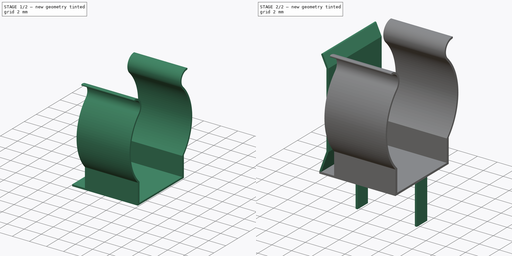
[diagram: build sequence overview — one tinted view per stage of 2, left to right]
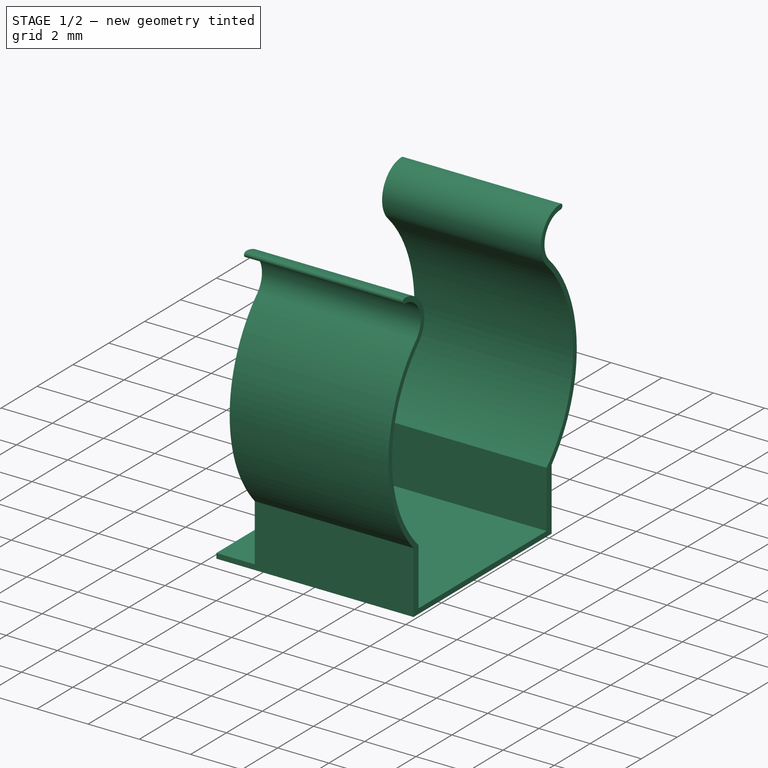
[diagram: stage 1 of 2 — iso view after this stage's code; geometry added in this stage tinted green]
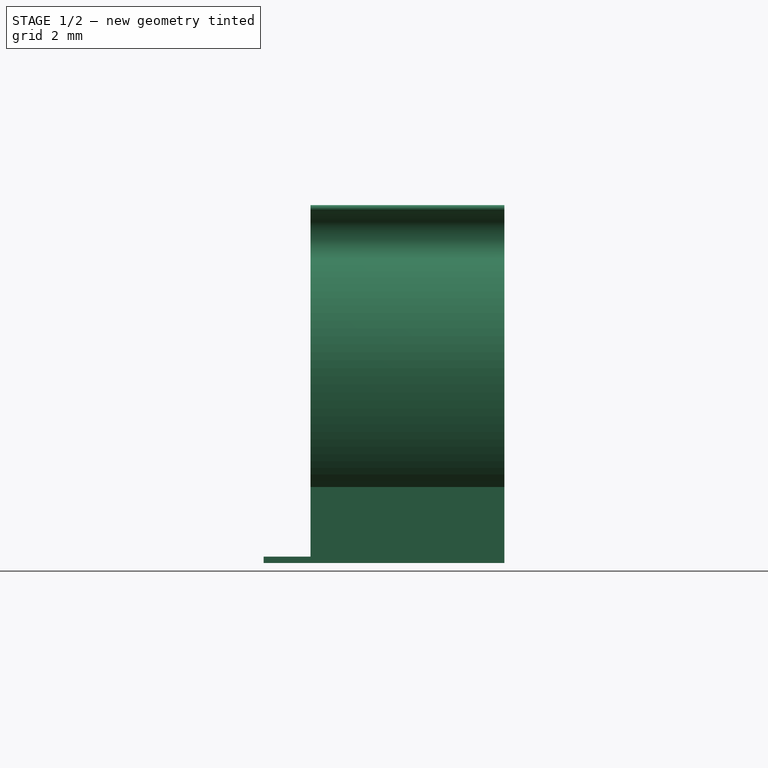
[diagram: stage 1 of 2 — front view after this stage's code; geometry added in this stage tinted green]
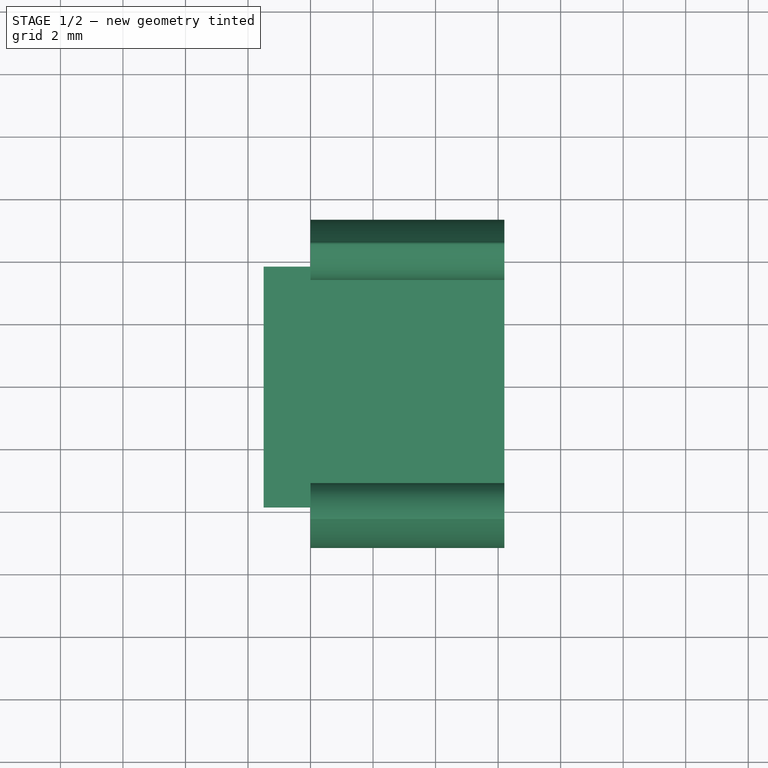
[diagram: stage 1 of 2 — top view after this stage's code; geometry added in this stage tinted green]
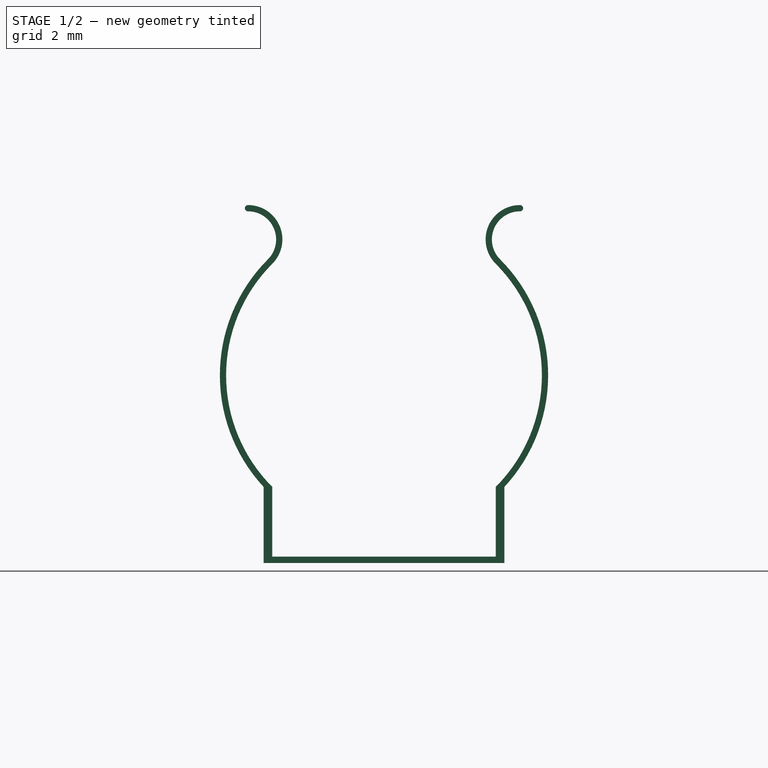
[diagram: stage 1 of 2 — right view after this stage's code; geometry added in this stage tinted green]
FCSTD DOCUMENT  (FreeCAD 1.0R39109 (Git))
Label: BC-0401
License: All rights reserved
LicenseURL: http://en.wikipedia.org/wiki/All_rights_reserved
objects: Sketcher::SketchObject×4, PartDesign::Pad×4, PartDesign::Body×1
note: 21 computed .brp shape members not serialized (recipe doc carries the construction recipe); baked Part::Feature solids carry a one-line shape summary decoded from their .brp

FEATURE [Sketcher::SketchObject] Sketch
  ArcFitTolerance = 1e-06
  AttachmentSupport = -> [YZ_Plane]
  FullyConstrained = true
  MakeInternals = false
  MapMode = 5
  Placement = pos=(0,0,0) rot=(0.57735,0.57735,0.57735;2.0944rad)
  sketch-geometry (16):
    g0: ArcOfCircle CenterX=0 CenterY=6 CenterZ=0 NormalX=0 NormalY=0 NormalZ=1 AngleXU=0 Radius=5.05 StartAngle=2.35664 EndAngle=3.92655
    g1: ArcOfCircle CenterX=0 CenterY=6 CenterZ=0 NormalX=0 NormalY=0 NormalZ=1 AngleXU=0 Radius=5.25 StartAngle=5.5356 EndAngle=7.06814
    g2: ArcOfCircle CenterX=0 CenterY=6 CenterZ=0 NormalX=0 NormalY=0 NormalZ=1 AngleXU=0 Radius=5.25 StartAngle=2.35664 EndAngle=3.88918
    g3: ArcOfCircle CenterX=0 CenterY=6 CenterZ=0 NormalX=0 NormalY=0 NormalZ=1 AngleXU=0 Radius=5.05 StartAngle=5.49823 EndAngle=7.06814
    g4: ArcOfCircle CenterX=4.35062 CenterY=10.3468 CenterZ=0 NormalX=0 NormalY=0 NormalZ=1 AngleXU=0 Radius=0.9 StartAngle=1.5708 EndAngle=3.92655
    g5: ArcOfCircle CenterX=4.35062 CenterY=10.3468 CenterZ=0 NormalX=0 NormalY=0 NormalZ=1 AngleXU=0 Radius=1.1 StartAngle=1.5708 EndAngle=3.92655
    g6: ArcOfCircle CenterX=-4.35062 CenterY=10.3468 CenterZ=0 NormalX=0 NormalY=0 NormalZ=1 AngleXU=0 Radius=0.9 StartAngle=5.49823 EndAngle=7.85398
    g7: ArcOfCircle CenterX=-4.35062 CenterY=10.3468 CenterZ=0 NormalX=0 NormalY=0 NormalZ=1 AngleXU=0 Radius=1.1 StartAngle=5.49823 EndAngle=7.85398
    g8: ArcOfCircle CenterX=-4.35063 CenterY=11.3468 CenterZ=0 NormalX=0 NormalY=0 NormalZ=1 AngleXU=0 Radius=0.1 StartAngle=1.5708 EndAngle=4.71239
    g9: ArcOfCircle CenterX=4.35062 CenterY=11.3468 CenterZ=0 NormalX=0 NormalY=0 NormalZ=1 AngleXU=0 Radius=0.1 StartAngle=4.71239 EndAngle=7.85398
    g10: LineSegment StartX=-3.85 StartY=0 StartZ=0 EndX=3.85 EndY=0 EndZ=0
    g11: LineSegment StartX=-3.85 StartY=2.43069 StartZ=0 EndX=-3.85 EndY=0 EndZ=0
    g12: LineSegment StartX=3.85 StartY=2.43069 StartZ=0 EndX=3.85 EndY=0 EndZ=0
    g13: LineSegment StartX=3.57246 StartY=2.43069 StartZ=0 EndX=3.57246 EndY=0.2 EndZ=0
    g14: LineSegment StartX=3.57246 StartY=0.2 StartZ=0 EndX=-3.57246 EndY=0.2 EndZ=0
    g15: LineSegment StartX=-3.57246 StartY=0.2 StartZ=0 EndX=-3.57246 EndY=2.43069 EndZ=0
  constraints (45):
    c: PointOnObject(g0,g-2)
    c: Coincident(g1,g0)
    c: Coincident(g2,g0)
    c: Coincident(g3,g0)
    c: DistanceY(g-1,g0) = 6
    c: Horizontal(g3,g0)
    c: Horizontal(g2,g1)
    c: Horizontal(g1,g2)
    c: Horizontal(g0,g3)
    c: Equal(g3,g0)
    c: Equal(g2,g1)
    c: Diameter(g3) = 10.1
    c: Equal(g7,g5)
    c: Equal(g4,g6)
    c: Tangent(g6,g2) = 1.5708
    c: Tangent(g7,g0) = 1.5708
    c: Tangent(g5,g3) = 1.5708
    c: Tangent(g4,g1) = 1.5708
    c: Coincident(g4,g5)
    c: Tangent(g8,g7) = -1.5708
    c: Tangent(g8,g6) = 1.5708
    c: Tangent(g9,g5) = -1.5708
    c: Tangent(g9,g4) = 1.5708
    c: Horizontal(g9,g8)
    c: Diameter(g8) = 0.2
    c: PointOnObject(g10,g-1)
    c: DistanceX(g10,g10) = 7.7
    c: Symmetric(g10,g10,g-1)
    c: Coincident(g11,g2)
    c: Coincident(g11,g10)
    c: Coincident(g12,g1)
    c: Coincident(g12,g10)
    c: Vertical(g12)
    c: Coincident(g13,g3)
    c: Vertical(g13)
    c: Coincident(g14,g13)
    c: Horizontal(g14)
    c: Coincident(g15,g14)
    c: Coincident(g15,g0)
    c: Vertical(g15)
    c: Horizontal(g0,g2)
    c: DistanceY(g10,g13) = 0.2
    c: Vertical(g0,g0)
    c: Diameter(g4) = 1.8
    c: Vertical(g4,g5)
FEATURE [PartDesign::Pad] Pad
  Direction = (1,0,0)
  Length = 6.2
  Length2 = 10
  Placement = pos=(0,0,0) rot=(1,1,1;2.0944rad)
  Profile = -> Sketch
  ReferenceAxis = -> Sketch [N_Axis]
  Suppressed = false
  Type = 0
FEATURE [Sketcher::SketchObject] Sketch001
  ArcFitTolerance = 1e-06
  AttachmentSupport = -> [YZ_Plane]
  FullyConstrained = true
  MakeInternals = false
  MapMode = 5
  Placement = pos=(0,0,0) rot=(0.57735,0.57735,0.57735;2.0944rad)
  sketch-geometry (4):
    g0: LineSegment StartX=3.85 StartY=0.2 StartZ=0 EndX=-3.85 EndY=0.2 EndZ=0
    g1: LineSegment StartX=-3.85 StartY=0.2 StartZ=0 EndX=-3.85 EndY=0 EndZ=0
    g2: LineSegment StartX=-3.85 StartY=0 StartZ=0 EndX=3.85 EndY=0 EndZ=0
    g3: LineSegment StartX=3.85 StartY=0 StartZ=0 EndX=3.85 EndY=0.2 EndZ=0
  constraints (11):
    c: Coincident(g0,g1)
    c: Coincident(g1,g2)
    c: Coincident(g2,g3)
    c: Coincident(g3,g0)
    c: Horizontal(g0)
    c: Vertical(g1)
    c: Vertical(g3)
    c: DistanceX(g2,g2) = 7.7
    c: Symmetric(g1,g2,g-2)
    c: PointOnObject(g1,g-1)
    c: DistanceY(g1,g1) = 0.2
FEATURE [PartDesign::Pad] Pad001
  BaseFeature = -> Pad
  Direction = (1,0,0)
  Length = 1.5
  Length2 = 10
  Placement = pos=(0,0,0) rot=(1,1,1;2.0944rad)
  Profile = -> Sketch001
  ReferenceAxis = -> Sketch001 [N_Axis]
  Reversed = true
  Suppressed = false
  Type = 0
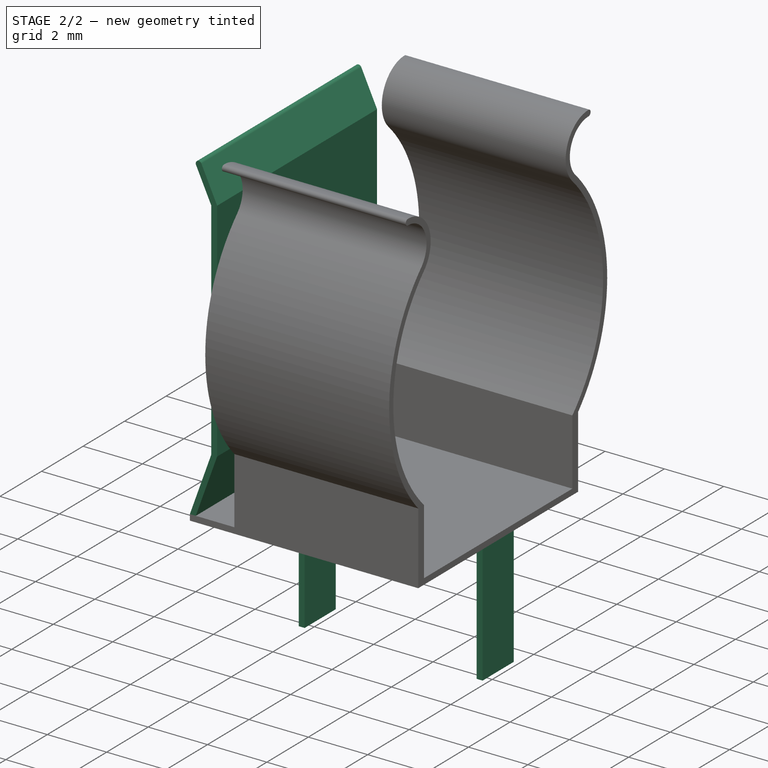
[diagram: stage 2 of 2 — iso view after this stage's code; geometry added in this stage tinted green]
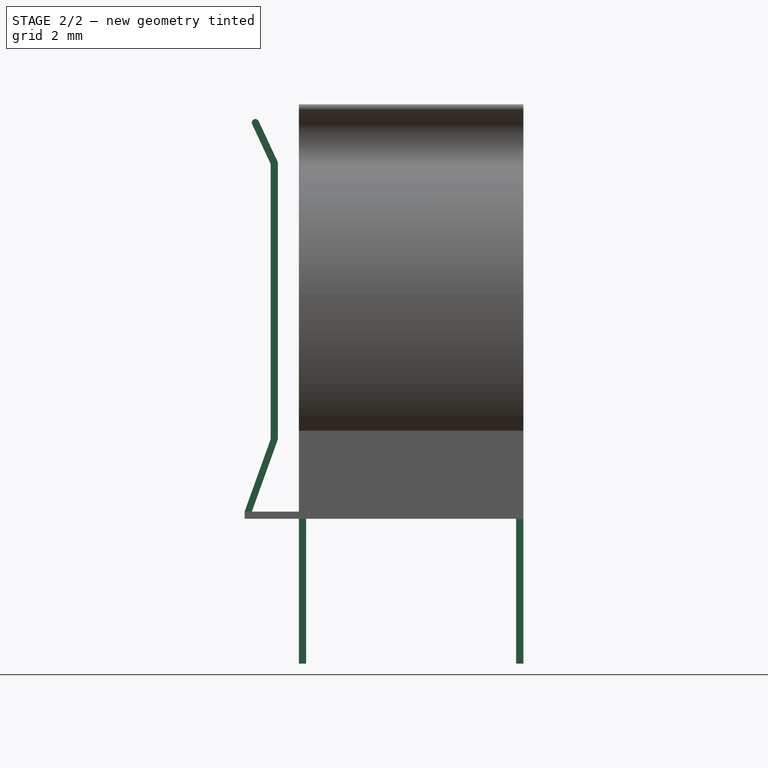
[diagram: stage 2 of 2 — front view after this stage's code; geometry added in this stage tinted green]
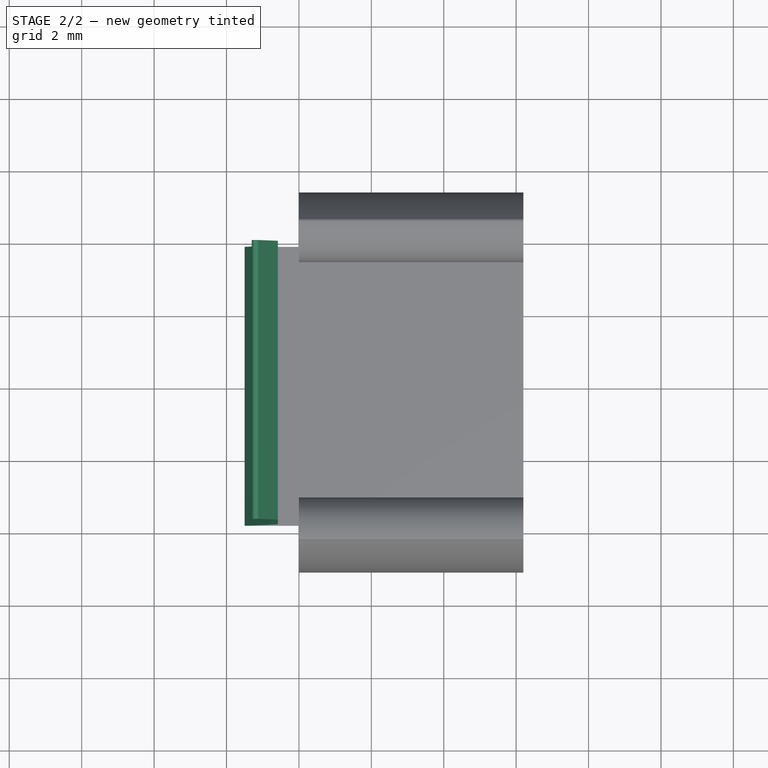
[diagram: stage 2 of 2 — top view after this stage's code; geometry added in this stage tinted green]
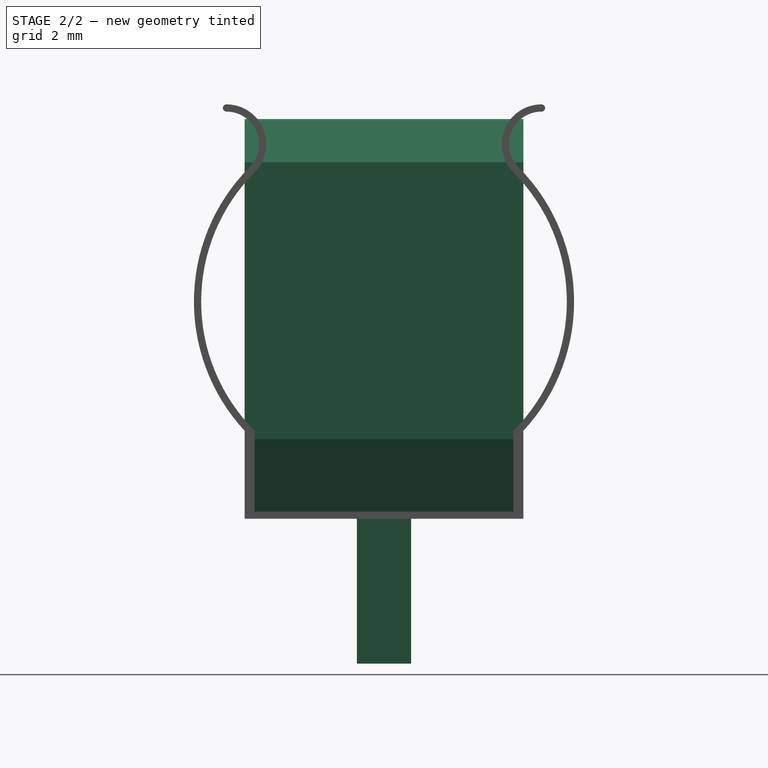
[diagram: stage 2 of 2 — right view after this stage's code; geometry added in this stage tinted green]
FEATURE [Sketcher::SketchObject] Sketch002
  ArcFitTolerance = 1e-06
  AttachmentSupport = -> [XZ_Plane]
  FullyConstrained = true
  MakeInternals = false
  MapMode = 5
  Placement = pos=(0,0,0) rot=(1,0,0;1.5708rad)
  sketch-geometry (13):
    g0: LineSegment StartX=-1.5 StartY=0.2 StartZ=0 EndX=-0.78 EndY=2.2 EndZ=0
    g1: LineSegment StartX=-0.78 StartY=2.2 StartZ=0 EndX=-0.78 EndY=9.8 EndZ=0
    g2: LineSegment StartX=-0.78 StartY=9.8 StartZ=0 EndX=-1.29294 EndY=10.9 EndZ=0
    g3: LineSegment StartX=-1.5 StartY=0.2 StartZ=0 EndX=-1.5 EndY=0 EndZ=0
    g4: LineSegment StartX=-1.5 StartY=0 StartZ=0 EndX=-1.3 EndY=0 EndZ=0
    g5: LineSegment StartX=-1.3 StartY=0 StartZ=0 EndX=-1.3 EndY=0.2 EndZ=0
    g6: LineSegment StartX=-1.3 StartY=0.2 StartZ=0 EndX=-0.58 EndY=2.2 EndZ=0
    g7: LineSegment StartX=-0.58 StartY=2.2 StartZ=0 EndX=-0.58 EndY=9.84434 EndZ=0
    g8: LineSegment StartX=-0.58 StartY=9.84434 StartZ=0 EndX=-1.11168 EndY=10.9845 EndZ=0
    g9: ArcOfCircle CenterX=-1.20231 CenterY=10.9423 CenterZ=0 NormalX=0 NormalY=0 NormalZ=1 AngleXU=0 Radius=0.1 StartAngle=0.436332 EndAngle=3.57792
    g10: LineSegment [constr] StartX=-0.78 StartY=2.2 StartZ=0 EndX=-0.58 EndY=2.2 EndZ=0
    g11: LineSegment [constr] StartX=-0.78 StartY=9.8 StartZ=0 EndX=-0.58 EndY=9.8 EndZ=0
    g12: GeomPoint [constr] X=-0.78 Y=6 Z=0
  constraints (36):
    c: Coincident(g1,g0)
    c: Vertical(g1)
    c: Coincident(g2,g1)
    c: Coincident(g3,g0)
    c: PointOnObject(g3,g-1)
    c: Coincident(g4,g3)
    c: PointOnObject(g4,g-1)
    c: Coincident(g5,g4)
    c: Coincident(g6,g5)
    c: Coincident(g7,g6)
    c: Vertical(g7)
    c: Coincident(g8,g7)
    c: Tangent(g9,g2) = 1.5708
    c: Tangent(g9,g8) = -1.5708
    c: Parallel(g8,g2)
    c: Diameter(g9) = 0.2
    c: Vertical(g3)
    c: DistanceX(g3,g-1) = 1.5
    c: DistanceX(g4,g-1) = 1.3
    c: Vertical(g5)
    c: DistanceY(g3,g3) = 0.2
    c: Horizontal(g5,g0)
    c: Coincident(g10,g0)
    c: PointOnObject(g10,g6)
    c: Distance(g10) = 0.2
    c: Coincident(g11,g1)
    c: PointOnObject(g11,g7)
    c: Horizontal(g11)
    c: Equal(g10,g11)
    c: Parallel(g6,g0)
    c: DistanceY(g0,g0) = 2
    c: DistanceX(g6,g-1) = 0.58
    c: Symmetric(g1,g1,g12)
    c: DistanceY(g-1,g12) = 6
    c: Angle(g2,g1) = 2.70526
    c: DistanceY(g2,g2) = 1.1
FEATURE [PartDesign::Pad] Pad002
  BaseFeature = -> Pad001
  Direction = (0,-1,2e-16)
  Length = 7.7
  Length2 = 10
  Midplane = true
  Placement = pos=(0,0,0) rot=(1,1,1;2.0944rad)
  Profile = -> Sketch002
  ReferenceAxis = -> Sketch002 [N_Axis]
  Suppressed = false
  Type = 0
FEATURE [Sketcher::SketchObject] Sketch003
  ArcFitTolerance = 1e-06
  AttachmentSupport = -> [XZ_Plane]
  FullyConstrained = true
  MakeInternals = false
  MapMode = 5
  Placement = pos=(0,0,0) rot=(1,0,0;1.5708rad)
  sketch-geometry (8):
    g0: LineSegment StartX=0 StartY=0 StartZ=0 EndX=0 EndY=-4 EndZ=0
    g1: LineSegment StartX=0 StartY=-4 StartZ=0 EndX=0.2 EndY=-4 EndZ=0
    g2: LineSegment StartX=0.2 StartY=-4 StartZ=0 EndX=0.2 EndY=0 EndZ=0
    g3: LineSegment StartX=6.2 StartY=0 StartZ=0 EndX=6.2 EndY=-4 EndZ=0
    g4: LineSegment StartX=6.2 StartY=-4 StartZ=0 EndX=6 EndY=-4 EndZ=0
    g5: LineSegment StartX=6 StartY=-4 StartZ=0 EndX=6 EndY=0 EndZ=0
    g6: LineSegment StartX=6 StartY=0 StartZ=0 EndX=6.2 EndY=0 EndZ=0
    g7: LineSegment StartX=0 StartY=0 StartZ=0 EndX=0.2 EndY=0 EndZ=0
  constraints (23):
    c: Coincident(g0,g-1)
    c: Vertical(g0)
    c: Coincident(g1,g0)
    c: Coincident(g2,g1)
    c: PointOnObject(g2,g-1)
    c: Vertical(g2)
    c: Horizontal(g1)
    c: DistanceY(g0,g0) = 4
    c: DistanceX(g1,g1) = 0.2
    c: PointOnObject(g3,g-1)
    c: Vertical(g3)
    c: Coincident(g4,g3)
    c: Horizontal(g4)
    c: Coincident(g5,g4)
    c: PointOnObject(g5,g-1)
    c: Vertical(g5)
    c: Coincident(g6,g5)
    c: Coincident(g6,g3)
    c: Equal(g1,g4)
    c: Equal(g5,g2)
    c: DistanceX(g0,g3) = 6.2
    c: Coincident(g7,g0)
    c: Coincident(g7,g2)
FEATURE [PartDesign::Pad] Pad003
  BaseFeature = -> Pad002
  Direction = (0,-1,2e-16)
  Length = 1.5
  Length2 = 10
  Midplane = true
  Placement = pos=(0,0,0) rot=(1,1,1;2.0944rad)
  Profile = -> Sketch003
  ReferenceAxis = -> Sketch003 [N_Axis]
  Suppressed = false
  Type = 0
FEATURE [PartDesign::Body] Body
  AllowCompound = false
  Group = -> [Sketch,Pad,Sketch001,Pad001,Sketch002,Pad002,Sketch003,Pad003]
  Origin = -> Origin
  Tip = -> Pad003
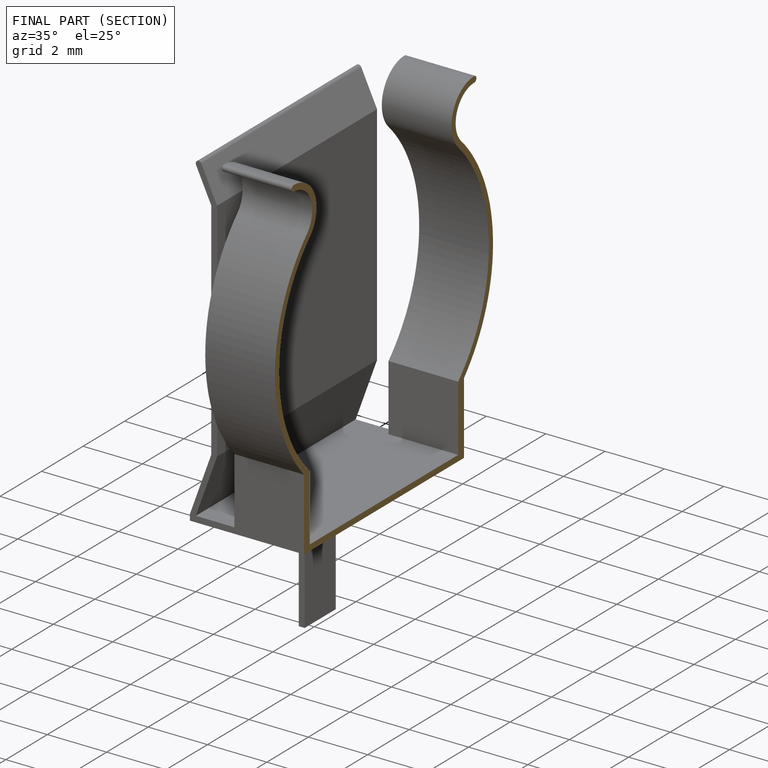
[diagram: finished part — half-section view (interior)]
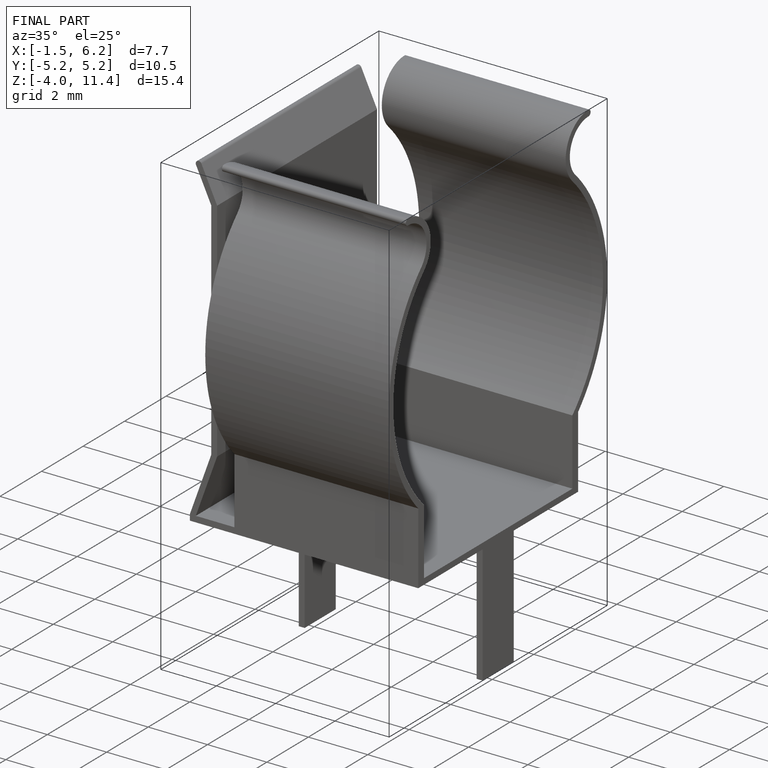
[diagram: finished part — iso view with bounding-box wireframe]
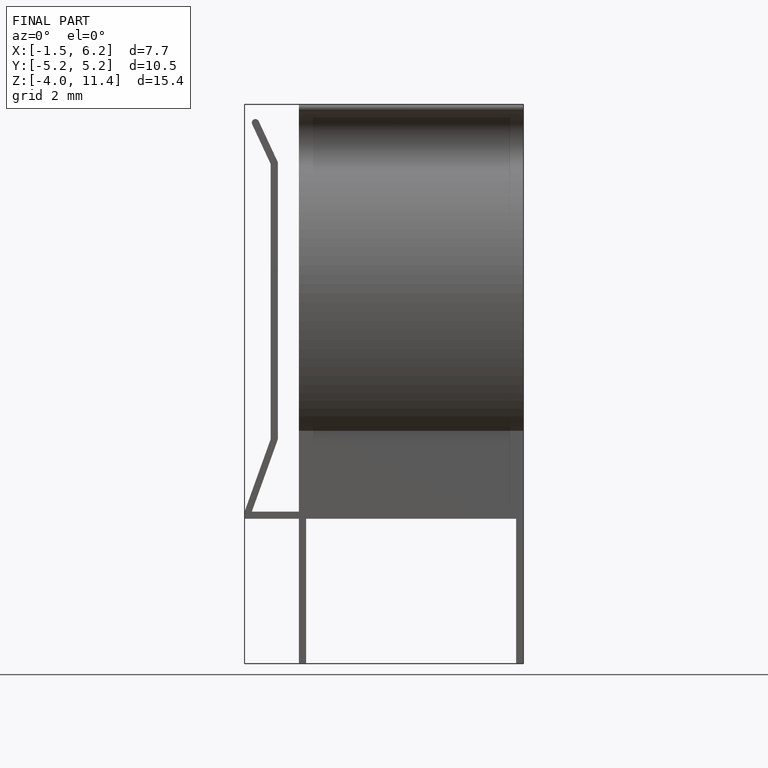
[diagram: finished part — front view with bounding-box wireframe]
